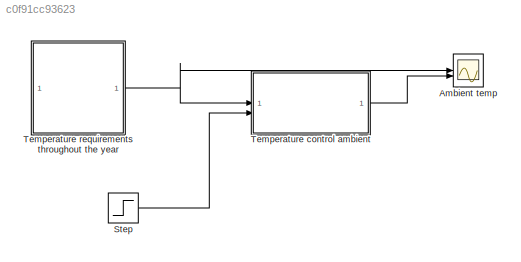
MODEL slx_c0f91cc93623
KIND model
CONFIG AbsTol = auto
CONFIG EnableMultiTasking = off
CONFIG FixedStep = auto
CONFIG MaxStep = 1e4
CONFIG MinStep = auto
CONFIG RelTol = 1e-3
CONFIG SampleTimeConstraint = Unconstrained
CONFIG SolverName = ode45
CONFIG StartTime = 0.0
CONFIG StopTime = 86400*365
BLOCK [Scope] Ambient temp
  Floating = off
  NumInputPorts = 2
  ScopeSpecificationString = Simulink.scopes.TimeScopeBlockCfg('CurrentConfiguration', extmgr.ConfigurationSet(extmgr.Configuration('Core','General UI',true),extmgr.Configuration('Core','Source UI',true),extmgr.Configuration('Sources','WiredSimulink',true,'DataLoggingVariableName','ScopeData1'),extmgr.Configuration('Visuals','Time Domain',true,'SerializedDisplays',{struct('MinYLimReal','-4.00651','MaxYLimReal','36.05861','YLa...<+1659ch>
BLOCK [Step] Step
  After = 10
  Commented = on
  SampleTime = 0
  Time = 4e4
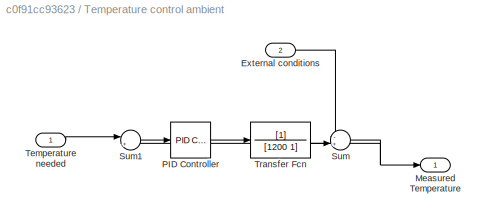
BLOCK [SubSystem] Temperature control ambient
BLOCK [Inport] Temperature control ambient/External conditions
  Port = 2
BLOCK [Outport] Temperature control ambient/Measured Temperature
BLOCK [Reference] Temperature control ambient/PID Controller  REF=slpidlib/PID Controller
  LibrarySourceBlock = simulink/Continuous/PID Controller
  SourceBlock = slpidlib/PID Controller
  SourceType = PID 1dof
BLOCK [Sum] Temperature control ambient/Sum
  Inputs = -+|
BLOCK [Sum] Temperature control ambient/Sum1
  Inputs = |+-
BLOCK [Inport] Temperature control ambient/Temperature needed
BLOCK [TransferFcn] Temperature control ambient/Transfer Fcn
  Denominator = [1200 1]
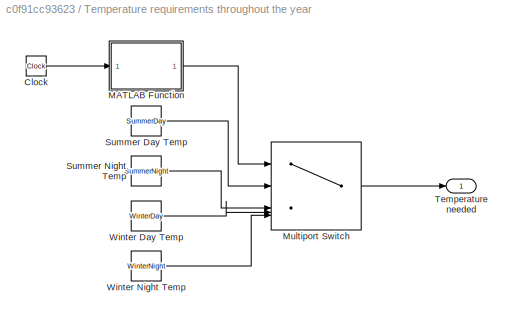
BLOCK [SubSystem] Temperature requirements throughout the year
BLOCK [Clock] Temperature requirements throughout the year/Clock
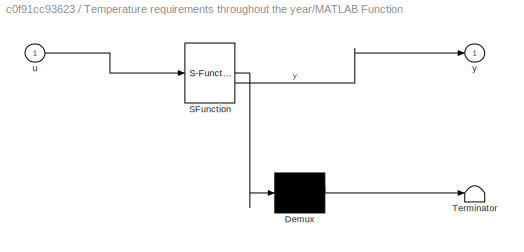
BLOCK [SubSystem] Temperature requirements throughout the year/MATLAB Function
  ErrorFcn = Stateflow.Translate.translate
  PermitHierarchicalResolution = ExplicitOnly
  SFBlockType = MATLAB Function
  TreatAsAtomicUnit = on
BLOCK [Demux] Temperature requirements throughout the year/MATLAB Function/ Demux 
  Outputs = 1
BLOCK [S-Function] Temperature requirements throughout the year/MATLAB Function/ SFunction 
  EnableBusSupport = on
  FunctionName = sf_sfun
  PortCounts = [1 2]
  SFcnIsStateOwnerBlock = off
  SFunctionDeploymentMode = off
  Tag = Stateflow S-Function 2
BLOCK [Terminator] Temperature requirements throughout the year/MATLAB Function/ Terminator 
BLOCK [Inport] Temperature requirements throughout the year/MATLAB Function/u
BLOCK [Outport] Temperature requirements throughout the year/MATLAB Function/y
BLOCK [MultiPortSwitch] Temperature requirements throughout the year/Multiport Switch
  InputSameDT = off
  Inputs = 4
  SaturateOnIntegerOverflow = off
BLOCK [Constant] Temperature requirements throughout the year/Summer Day Temp
  Value = SummerDay
BLOCK [Constant] Temperature requirements throughout the year/Summer Night Temp
  Value = SummerNight
BLOCK [Outport] Temperature requirements throughout the year/Temperature needed
BLOCK [Constant] Temperature requirements throughout the year/Winter Day Temp
  Value = WinterDay
BLOCK [Constant] Temperature requirements throughout the year/Winter Night Temp
  Value = WinterNight
LINE Step:1 -> Temperature control ambient:2
LINE Temperature control ambient/External conditions:1 -> Temperature control ambient/Sum:1
LINE Temperature control ambient/PID Controller:1 -> Temperature control ambient/Transfer Fcn:1
LINE Temperature control ambient/Sum1:1 -> Temperature control ambient/PID Controller:1
NET Temperature control ambient/Sum:1 -> Temperature control ambient/Measured Temperature:1, Temperature control ambient/Sum1:2
LINE Temperature control ambient/Temperature needed:1 -> Temperature control ambient/Sum1:1
LINE Temperature control ambient/Transfer Fcn:1 -> Temperature control ambient/Sum:2
LINE Temperature control ambient:1 -> Ambient temp:2
LINE Temperature requirements throughout the year/Clock:1 -> Temperature requirements throughout the year/MATLAB Function:1
LINE Temperature requirements throughout the year/MATLAB Function:1 -> Temperature requirements throughout the year/Multiport Switch:1
LINE Temperature requirements throughout the year/Multiport Switch:1 -> Temperature requirements throughout the year/Temperature needed:1
LINE Temperature requirements throughout the year/Summer Day Temp:1 -> Temperature requirements throughout the year/Multiport Switch:2
LINE Temperature requirements throughout the year/Summer Night Temp:1 -> Temperature requirements throughout the year/Multiport Switch:3
LINE Temperature requirements throughout the year/Winter Day Temp:1 -> Temperature requirements throughout the year/Multiport Switch:4
LINE Temperature requirements throughout the year/Winter Night Temp:1 -> Temperature requirements throughout the year/Multiport Switch:5
NET Temperature requirements throughout the year:1 -> Ambient temp:1, Temperature control ambient:1
note: NET lines group one-source signal fan-out (src -> all destinations, sorted); 1:1 wires keep LINE
CHART Temperature requirements throughout the year/MATLAB Function states=1 transitions=1
  STATE_LABEL 'eML_blk_kernel()'
  STATE_LABEL 'SCRIPT:\nfunction y = fcn(u)\n    persistent rDaily rSeason; \n   \n    if isempty(rDaily)\n        rDaily = 0;\n    end\n    if isempty(rSeason)\n        rSeason = 0;\n    end\n    \n    % Extract time components\n    TDaily = u - rDaily * 24 * 60 * 60;  % Time since last daily reset\n    TSeason = u - rSeason * 365 * 24 * 60 * 60;  % Time since last yearly reset\n    \n    % Check if a new day has passed\n    i...<+1016ch>'
CHART  states=0 transitions=0
